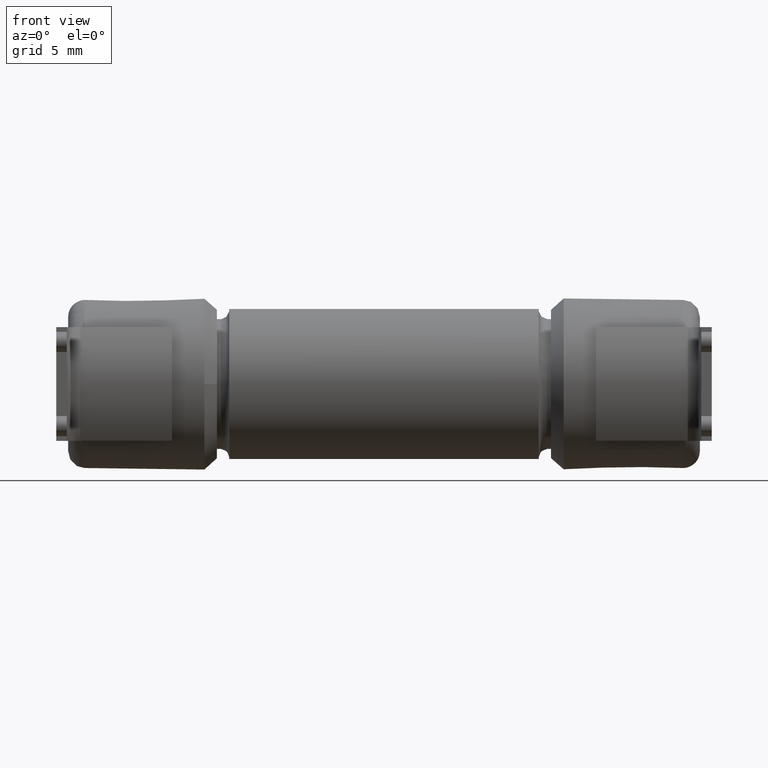
[diagram: clean part render]
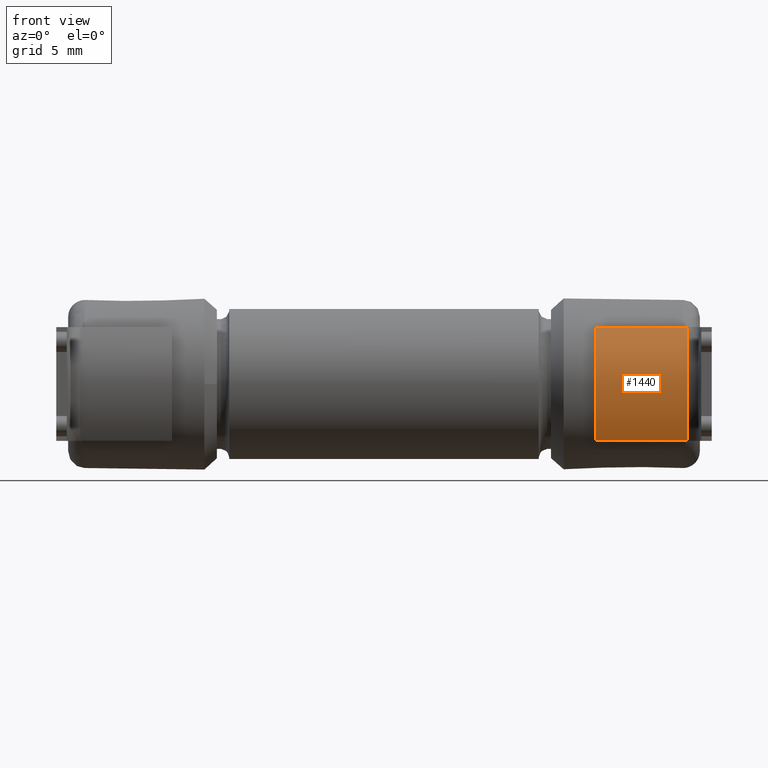
[diagram: same view with one face highlighted and labeled with its STEP entity id]
A machine part, front view. The second image highlights one B-rep face of the part: STEP entity #1440.
In plain terms, the highlighted cylindrical surface (partial cylindrical patch) has radius 5.842 mm, axis along (1, 0, -0).
Its self-contained STEP definition (entity closure, byte-faithful):
#207 = VECTOR ( 'NONE', #2551, 39.37007874015748100 ) ;
#230 = CARTESIAN_POINT ( 'NONE',  ( 1.465750000000000600, -0.1835445075559232200, 0.1350000000000003100 ) ) ;
#267 = EDGE_CURVE ( 'NONE', #824, #1324, #2086, .T. ) ;
#396 = DIRECTION ( 'NONE',  ( 0.0000000000000000000, 1.000000000000000000, 0.0000000000000000000 ) ) ;
#415 = DIRECTION ( 'NONE',  ( 1.000000000000000000, 3.444847570172506800E-031, -4.930380657631387300E-032 ) ) ;
#700 = DIRECTION ( 'NONE',  ( 0.0000000000000000000, 1.000000000000000000, 0.0000000000000000000 ) ) ;
#824 = VERTEX_POINT ( 'NONE', #1104 ) ;
#860 = ORIENTED_EDGE ( 'NONE', *, *, #1215, .F. ) ;
#953 = CARTESIAN_POINT ( 'NONE',  ( 1.215750000000000600, -0.1835445075559231900, 0.1350000000000002600 ) ) ;
#1064 = CARTESIAN_POINT ( 'NONE',  ( 1.465750000000000600, -0.1835445075559234700, -0.1349999999999996800 ) ) ;
#1099 = CARTESIAN_POINT ( 'NONE',  ( 1.433750000000000500, -0.1835445075559231600, 0.1350000000000003100 ) ) ;
#1104 = CARTESIAN_POINT ( 'NONE',  ( 1.433750000000000500, -0.1835445075559235800, -0.1349999999999996800 ) ) ;
#1108 = VECTOR ( 'NONE', #1759, 39.37007874015748100 ) ;
#1141 = DIRECTION ( 'NONE',  ( -1.000000000000000000, -3.444847570172506800E-031, 4.930380657631387300E-032 ) ) ;
#1162 = EDGE_CURVE ( 'NONE', #1786, #1647, #1355, .T. ) ;
#1215 = EDGE_CURVE ( 'NONE', #824, #1647, #2453, .T. ) ;
#1324 = VERTEX_POINT ( 'NONE', #1099 ) ;
#1355 = CIRCLE ( 'NONE', #2287, 0.2300000000000000100 ) ;
#1394 = EDGE_CURVE ( 'NONE', #1786, #1324, #2780, .T. ) ;
#1412 = AXIS2_PLACEMENT_3D ( 'NONE', #1686, #1141, #2535 ) ;
#1440 = ADVANCED_FACE ( 'NONE', ( #1604 ), #1543, .T. ) ;
#1543 = CYLINDRICAL_SURFACE ( 'NONE', #1758, 0.2300000000000000100 ) ;
#1604 = FACE_OUTER_BOUND ( 'NONE', #1676, .T. ) ;
#1647 = VERTEX_POINT ( 'NONE', #1982 ) ;
#1676 = EDGE_LOOP ( 'NONE', ( #2602, #2000, #860, #1864 ) ) ;
#1686 = CARTESIAN_POINT ( 'NONE',  ( 1.433750000000000500, 0.002667736939437342100, -5.277356576322566600E-017 ) ) ;
#1758 = AXIS2_PLACEMENT_3D ( 'NONE', #1768, #2411, #700 ) ;
#1759 = DIRECTION ( 'NONE',  ( 1.000000000000000000, 1.094764425253756700E-046, 4.930380657631290900E-032 ) ) ;
#1768 = CARTESIAN_POINT ( 'NONE',  ( 1.215750000000000600, 0.002667736939437342100, -5.277356576322566000E-017 ) ) ;
#1786 = VERTEX_POINT ( 'NONE', #953 ) ;
#1864 = ORIENTED_EDGE ( 'NONE', *, *, #267, .T. ) ;
#1982 = CARTESIAN_POINT ( 'NONE',  ( 1.215750000000000600, -0.1835445075559235800, -0.1349999999999996800 ) ) ;
#2000 = ORIENTED_EDGE ( 'NONE', *, *, #1162, .T. ) ;
#2086 = CIRCLE ( 'NONE', #1412, 0.2300000000000000100 ) ;
#2144 = CARTESIAN_POINT ( 'NONE',  ( 1.215750000000000600, 0.002667736939437342100, -5.277356576322566000E-017 ) ) ;
#2287 = AXIS2_PLACEMENT_3D ( 'NONE', #2144, #415, #396 ) ;
#2411 = DIRECTION ( 'NONE',  ( 1.000000000000000000, 3.444847570172506800E-031, -4.930380657631387300E-032 ) ) ;
#2453 = LINE ( 'NONE', #1064, #207 ) ;
#2535 = DIRECTION ( 'NONE',  ( 0.0000000000000000000, 1.000000000000000000, 0.0000000000000000000 ) ) ;
#2551 = DIRECTION ( 'NONE',  ( -1.000000000000000000, -9.825223376908307000E-047, -4.930380657631291500E-032 ) ) ;
#2602 = ORIENTED_EDGE ( 'NONE', *, *, #1394, .F. ) ;
#2780 = LINE ( 'NONE', #230, #1108 ) ;